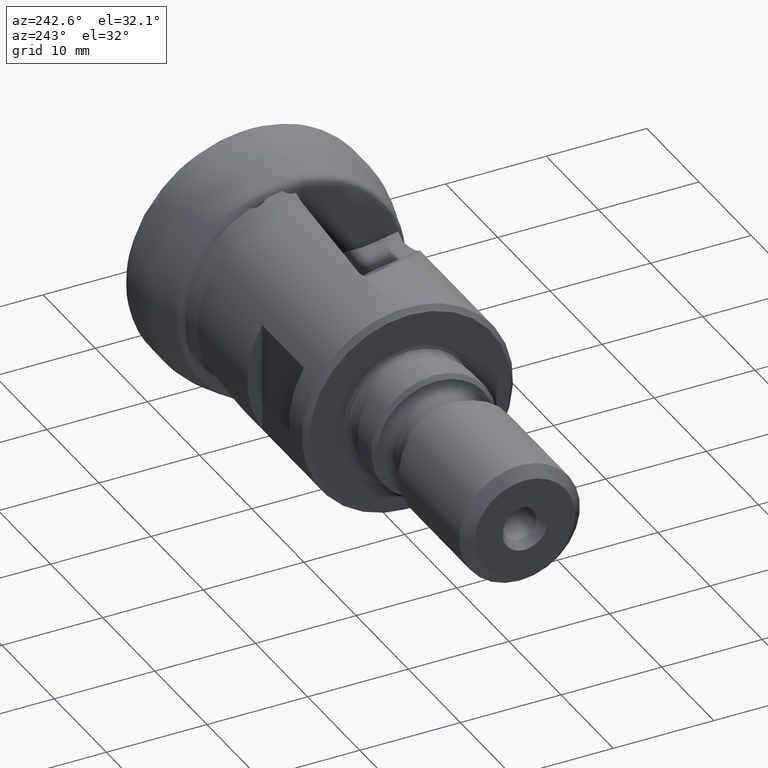
[diagram: clean part render]
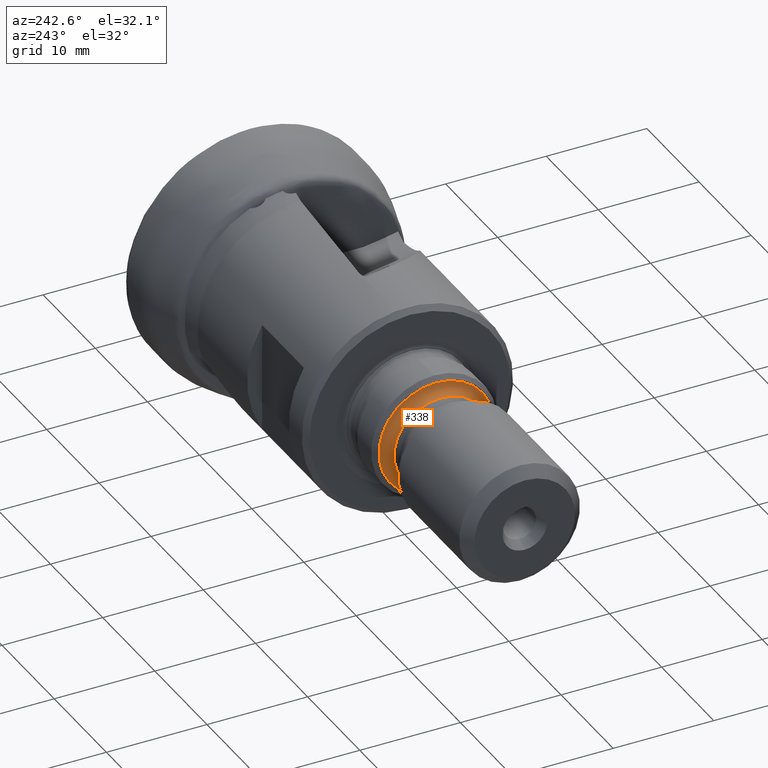
[diagram: same view with one face highlighted and labeled with its STEP entity id]
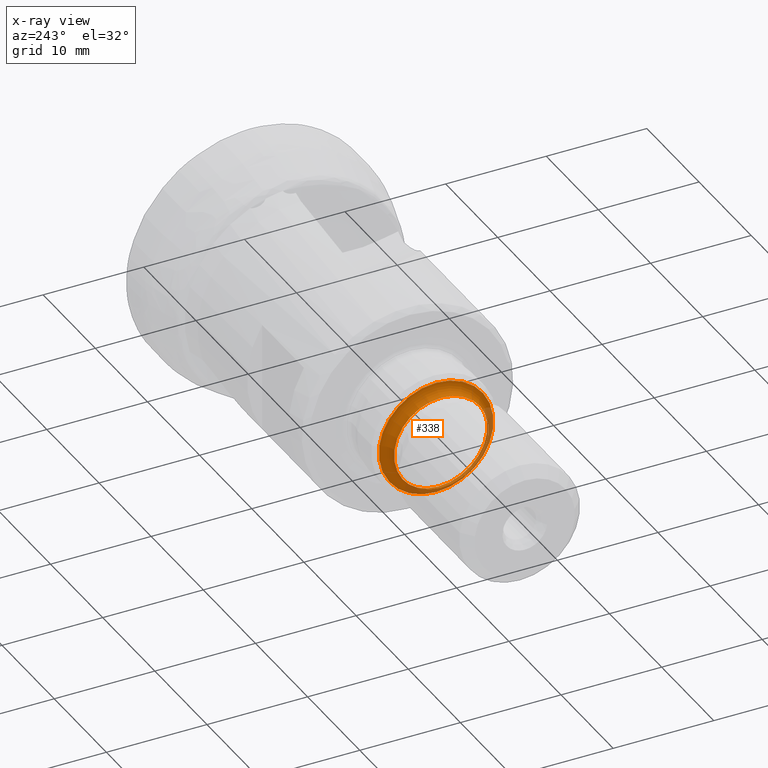
[diagram: x-ray of the same camera — body ghosted, the highlighted face saturated]
A machine part, auxiliary view. The second image highlights one B-rep face of the part: STEP entity #338.
The next image is the same camera in x-ray: the body ghosted, the highlighted face saturated — about 21% of this face is hidden behind the body in this view.
In plain terms, the highlighted toroidal blend (fillet) surface has major radius 5.7 mm and minor (blend) radius 1 mm.
Its self-contained STEP definition (entity closure, byte-faithful):
#85 = EDGE_CURVE ( 'NONE', #3562, #3562, #2467, .T. ) ;
#183 = FACE_OUTER_BOUND ( 'NONE', #3757, .T. ) ;
#307 = CARTESIAN_POINT ( 'NONE',  ( -37.04999999999999700, 0.0000000000000000000, 0.0000000000000000000 ) ) ;
#338 = ADVANCED_FACE ( 'NONE', ( #1255, #183 ), #2077, .F. ) ;
#413 = CARTESIAN_POINT ( 'NONE',  ( -36.04999999999999700, 0.0000000000000000000, -5.699999999999994800 ) ) ;
#622 = DIRECTION ( 'NONE',  ( 0.0000000000000000000, 0.0000000000000000000, -1.000000000000000000 ) ) ;
#918 = AXIS2_PLACEMENT_3D ( 'NONE', #3785, #1287, #1259 ) ;
#1255 = FACE_OUTER_BOUND ( 'NONE', #1277, .T. ) ;
#1259 = DIRECTION ( 'NONE',  ( 0.0000000000000000000, 0.0000000000000000000, -1.000000000000000000 ) ) ;
#1277 = EDGE_LOOP ( 'NONE', ( #3770 ) ) ;
#1287 = DIRECTION ( 'NONE',  ( 1.000000000000000000, -0.0000000000000000000, -0.0000000000000000000 ) ) ;
#1455 = DIRECTION ( 'NONE',  ( 1.000000000000000000, -0.0000000000000000000, -0.0000000000000000000 ) ) ;
#1905 = CARTESIAN_POINT ( 'NONE',  ( -37.04999999999999700, 0.0000000000000000000, -4.699999999999995700 ) ) ;
#2077 = TOROIDAL_SURFACE ( 'NONE', #918, 5.699999999999994800, 1.000000000000000000 ) ;
#2326 = VERTEX_POINT ( 'NONE', #413 ) ;
#2467 = CIRCLE ( 'NONE', #3094, 4.699999999999995700 ) ;
#2471 = DIRECTION ( 'NONE',  ( 1.000000000000000000, -0.0000000000000000000, -0.0000000000000000000 ) ) ;
#2897 = EDGE_CURVE ( 'NONE', #2326, #2326, #3687, .T. ) ;
#3094 = AXIS2_PLACEMENT_3D ( 'NONE', #307, #2471, #622 ) ;
#3336 = CARTESIAN_POINT ( 'NONE',  ( -36.04999999999999700, 0.0000000000000000000, 0.0000000000000000000 ) ) ;
#3562 = VERTEX_POINT ( 'NONE', #1905 ) ;
#3643 = DIRECTION ( 'NONE',  ( 0.0000000000000000000, 0.0000000000000000000, -1.000000000000000000 ) ) ;
#3687 = CIRCLE ( 'NONE', #3791, 5.699999999999994800 ) ;
#3757 = EDGE_LOOP ( 'NONE', ( #3958 ) ) ;
#3770 = ORIENTED_EDGE ( 'NONE', *, *, #85, .T. ) ;
#3785 = CARTESIAN_POINT ( 'NONE',  ( -37.04999999999999700, 0.0000000000000000000, 0.0000000000000000000 ) ) ;
#3791 = AXIS2_PLACEMENT_3D ( 'NONE', #3336, #1455, #3643 ) ;
#3958 = ORIENTED_EDGE ( 'NONE', *, *, #2897, .F. ) ;